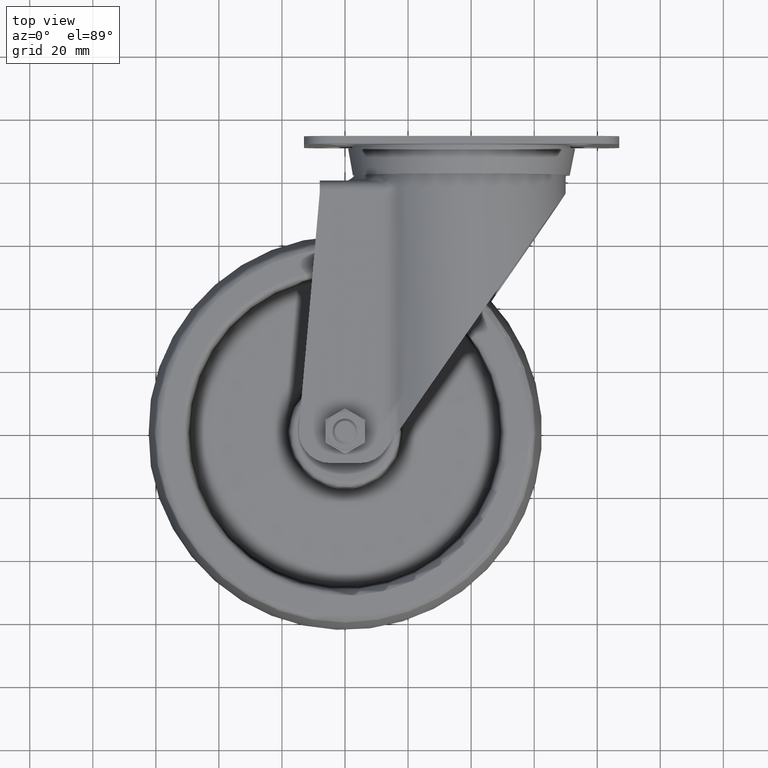
[diagram: clean part render]
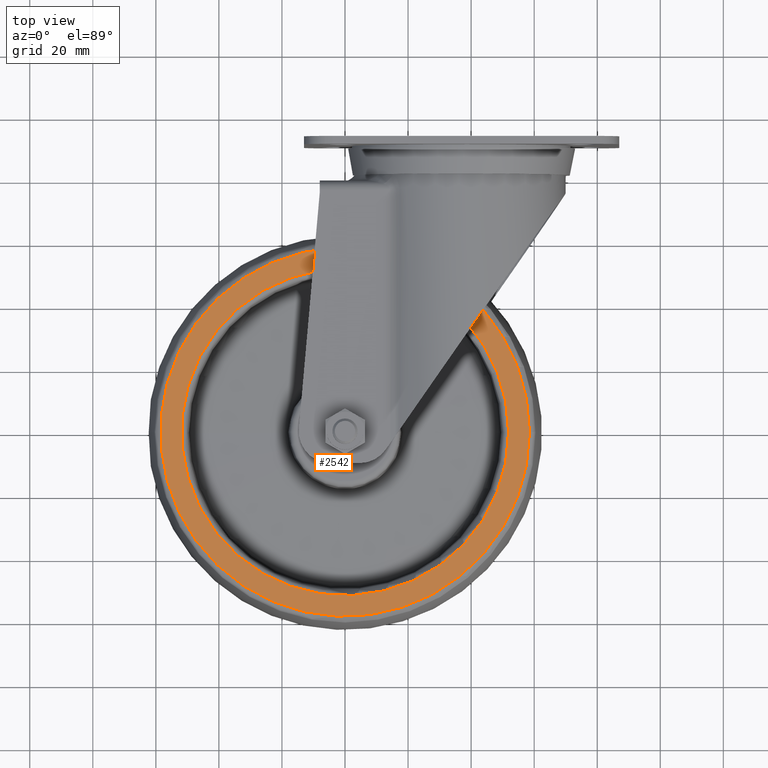
[diagram: same view with one face highlighted and labeled with its STEP entity id]
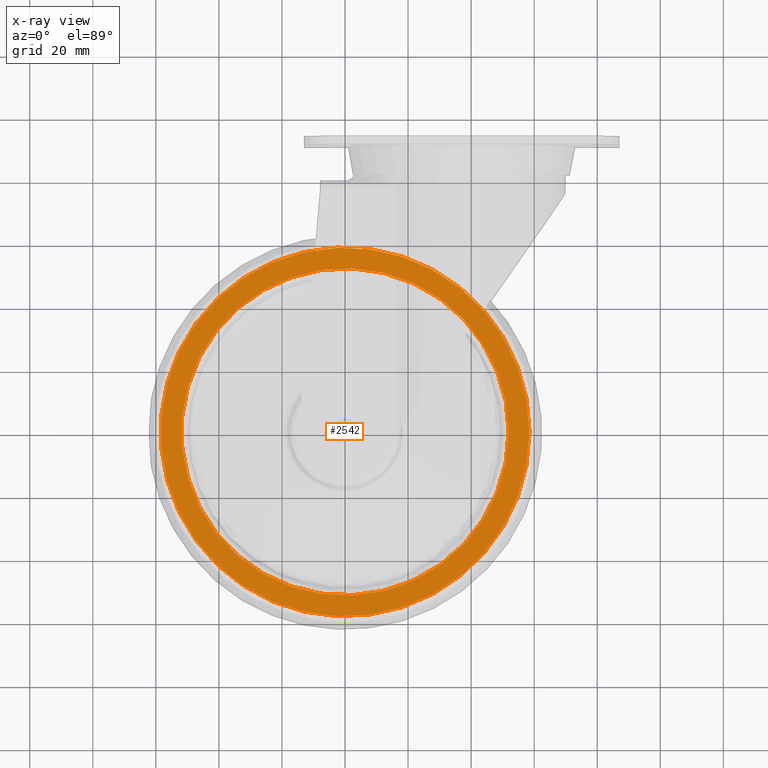
[diagram: x-ray of the same camera — body ghosted, the highlighted face saturated]
A machine part, top view. The second image highlights one B-rep face of the part: STEP entity #2542.
The next image is the same camera in x-ray: the body ghosted, the highlighted face saturated — about 0% of this face is hidden behind the body in this view.
In plain terms, the highlighted planar face has unit normal (0, 0, 1).
Its self-contained STEP definition (entity closure, byte-faithful):
#180=FACE_BOUND('',#498,.T.);
#325=FACE_OUTER_BOUND('',#497,.T.);
#497=EDGE_LOOP('',(#2178));
#498=EDGE_LOOP('',(#2179));
#644=CIRCLE('',#2841,51.8979291334297);
#670=CIRCLE('',#2876,58.4807660688538);
#1131=VERTEX_POINT('',#4612);
#1150=VERTEX_POINT('',#4668);
#1466=EDGE_CURVE('',#1131,#1131,#644,.T.);
#1495=EDGE_CURVE('',#1150,#1150,#670,.T.);
#2178=ORIENTED_EDGE('',*,*,#1495,.F.);
#2179=ORIENTED_EDGE('',*,*,#1466,.T.);
#2249=PLANE('',#2878);
#2542=ADVANCED_FACE('',(#325,#180),#2249,.T.);
#2841=AXIS2_PLACEMENT_3D('',#4613,#3549,#3550);
#2876=AXIS2_PLACEMENT_3D('',#4670,#3622,#3623);
#2878=AXIS2_PLACEMENT_3D('',#4672,#3626,#3627);
#3549=DIRECTION('center_axis',(0.,0.,-1.));
#3550=DIRECTION('ref_axis',(1.,0.,0.));
#3622=DIRECTION('center_axis',(0.,0.,-1.));
#3623=DIRECTION('ref_axis',(1.,0.,0.));
#3626=DIRECTION('center_axis',(0.,0.,1.));
#3627=DIRECTION('ref_axis',(1.,0.,0.));
#4612=CARTESIAN_POINT('',(51.8979291334297,-1.27109067534043E-14,17.5));
#4613=CARTESIAN_POINT('Origin',(0.,0.,17.5));
#4668=CARTESIAN_POINT('',(58.4807660688538,-1.43231835408637E-14,17.5));
#4670=CARTESIAN_POINT('Origin',(0.,0.,17.5));
#4672=CARTESIAN_POINT('Origin',(54.1989645667149,-1.32744792757986E-14,
17.5));